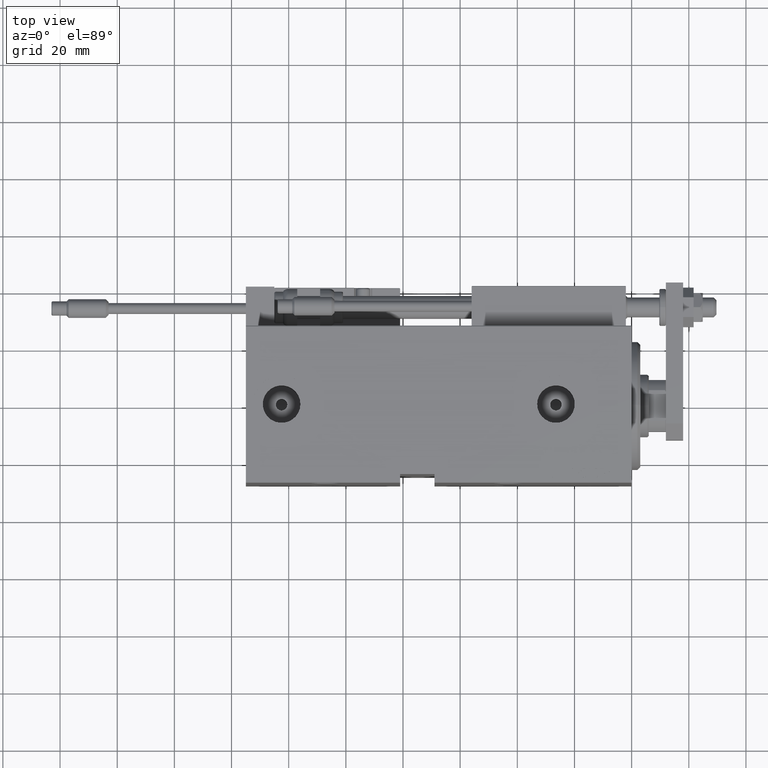
[diagram: clean part render]
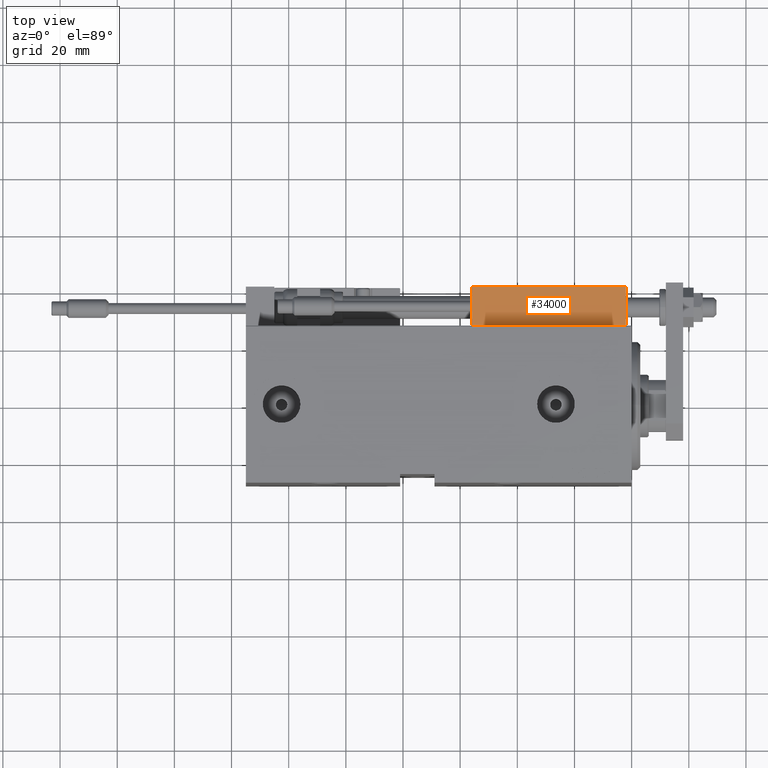
[diagram: same view with one face highlighted and labeled with its STEP entity id]
A machine part, top view. The second image highlights one B-rep face of the part: STEP entity #34000.
In plain terms, the highlighted planar face has unit normal (-0, -0, -1).
Its self-contained STEP definition (entity closure, byte-faithful):
#117 = LINE ( 'NONE', #32188, #41498 ) ;
#1582 = EDGE_CURVE ( 'NONE', #38336, #22028, #33457, .T. ) ;
#1802 = DIRECTION ( 'NONE',  ( -0.000000000000000000, -0.000000000000000000, -1.000000000000000000 ) ) ;
#3501 = CARTESIAN_POINT ( 'NONE',  ( 27.00000000000006395, 20.00000000000001776, 0.000000000000000000 ) ) ;
#4026 = DIRECTION ( 'NONE',  ( 1.000000000000000000, -6.424901762877063495E-17, -0.000000000000000000 ) ) ;
#4506 = CARTESIAN_POINT ( 'NONE',  ( 27.00000000000006395, 20.00000000000001776, 14.00000000000000000 ) ) ;
#5030 = DIRECTION ( 'NONE',  ( 1.000000000000000000, -6.424901762877063495E-17, 0.000000000000000000 ) ) ;
#5322 = EDGE_CURVE ( 'NONE', #13831, #38336, #117, .T. ) ;
#6064 = DIRECTION ( 'NONE',  ( -0.000000000000000000, -0.000000000000000000, -1.000000000000000000 ) ) ;
#9102 = ORIENTED_EDGE ( 'NONE', *, *, #1582, .T. ) ;
#10927 = AXIS2_PLACEMENT_3D ( 'NONE', #4506, #36069, #5030 ) ;
#11108 = ORIENTED_EDGE ( 'NONE', *, *, #28473, .F. ) ;
#11586 = DIRECTION ( 'NONE',  ( -1.000000000000000000, 6.424901762877062263E-17, 0.000000000000000000 ) ) ;
#13831 = VERTEX_POINT ( 'NONE', #33783 ) ;
#18570 = VECTOR ( 'NONE', #11586, 1000.000000000000000 ) ;
#18910 = EDGE_CURVE ( 'NONE', #22028, #23529, #39231, .T. ) ;
#22028 = VERTEX_POINT ( 'NONE', #32745 ) ;
#23529 = VERTEX_POINT ( 'NONE', #41276 ) ;
#24361 = PLANE ( 'NONE',  #10927 ) ;
#24663 = ORIENTED_EDGE ( 'NONE', *, *, #18910, .T. ) ;
#28473 = EDGE_CURVE ( 'NONE', #13831, #23529, #37524, .T. ) ;
#29690 = VECTOR ( 'NONE', #6064, 1000.000000000000000 ) ;
#31409 = VECTOR ( 'NONE', #1802, 1000.000000000000000 ) ;
#32188 = CARTESIAN_POINT ( 'NONE',  ( 27.00000000000006395, 20.00000000000001776, 13.70000000000000107 ) ) ;
#32745 = CARTESIAN_POINT ( 'NONE',  ( 27.00000000000006395, 20.00000000000001776, 0.000000000000000000 ) ) ;
#32855 = CARTESIAN_POINT ( 'NONE',  ( -26.99999999999993605, 20.00000000000002132, 14.00000000000000000 ) ) ;
#32938 = FACE_OUTER_BOUND ( 'NONE', #43225, .T. ) ;
#33457 = LINE ( 'NONE', #41794, #29690 ) ;
#33783 = CARTESIAN_POINT ( 'NONE',  ( -26.99999999999993605, 20.00000000000002132, 13.70000000000000107 ) ) ;
#34000 = ADVANCED_FACE ( 'NONE', ( #32938 ), #24361, .F. ) ;
#36069 = DIRECTION ( 'NONE',  ( -6.424901762877063495E-17, -1.000000000000000000, 0.000000000000000000 ) ) ;
#37524 = LINE ( 'NONE', #32855, #31409 ) ;
#38336 = VERTEX_POINT ( 'NONE', #41570 ) ;
#39231 = LINE ( 'NONE', #3501, #18570 ) ;
#41276 = CARTESIAN_POINT ( 'NONE',  ( -26.99999999999993605, 20.00000000000002132, 0.000000000000000000 ) ) ;
#41498 = VECTOR ( 'NONE', #4026, 1000.000000000000000 ) ;
#41570 = CARTESIAN_POINT ( 'NONE',  ( 27.00000000000006395, 20.00000000000001776, 13.70000000000000107 ) ) ;
#41794 = CARTESIAN_POINT ( 'NONE',  ( 27.00000000000006395, 20.00000000000001776, 14.00000000000000000 ) ) ;
#43225 = EDGE_LOOP ( 'NONE', ( #11108, #49711, #9102, #24663 ) ) ;
#49711 = ORIENTED_EDGE ( 'NONE', *, *, #5322, .T. ) ;